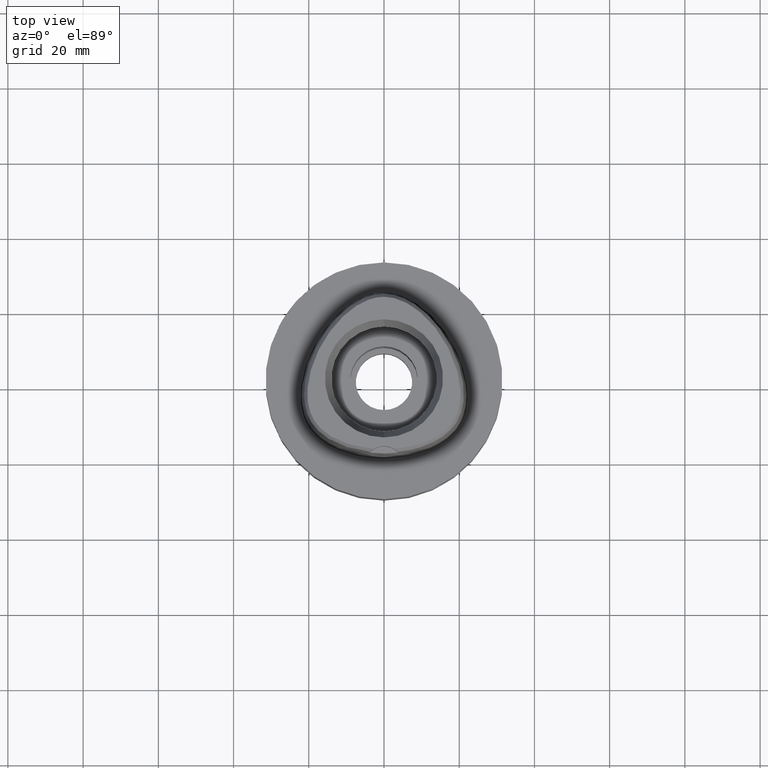
[diagram: clean part render]
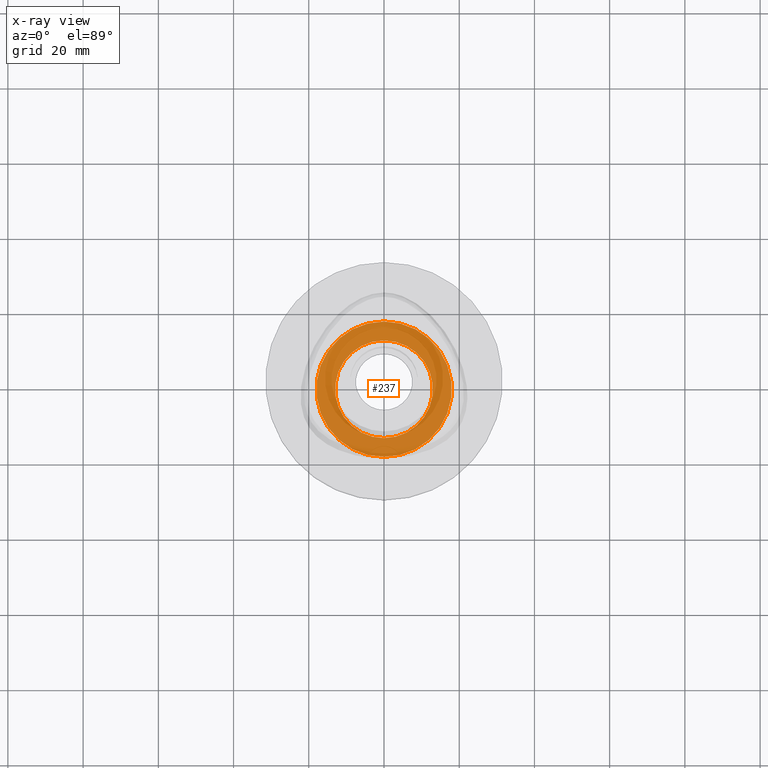
[diagram: x-ray — body ghosted, one internal face saturated and labeled with its STEP entity id]
A machine part, top view, then the same camera in x-ray: the body is ghosted and one INTERNAL B-rep face — a face not visible from any outside direction — is saturated and labeled: STEP entity #237.
In plain terms, the highlighted planar face has unit normal (0, 0, -1).
Its self-contained STEP definition (entity closure, byte-faithful):
#195 = ORIENTED_EDGE ( 'NONE', *, *, #4981, .F. ) ;
#237 = ADVANCED_FACE ( 'NONE', ( #4304, #2148 ), #529, .F. ) ;
#308 = AXIS2_PLACEMENT_3D ( 'NONE', #4675, #2521, #5508 ) ;
#383 = EDGE_LOOP ( 'NONE', ( #3117, #672 ) ) ;
#522 = CIRCLE ( 'NONE', #2387, 13.00000000000000000 ) ;
#529 = PLANE ( 'NONE',  #4546 ) ;
#672 = ORIENTED_EDGE ( 'NONE', *, *, #2717, .F. ) ;
#830 = CARTESIAN_POINT ( 'NONE',  ( 0.0000000000000000000, 13.00000000000000000, -10.80000000000000071 ) ) ;
#877 = CIRCLE ( 'NONE', #4989, 18.00000000000000000 ) ;
#902 = CARTESIAN_POINT ( 'NONE',  ( 0.0000000000000000000, 0.0000000000000000000, -10.80000000000000071 ) ) ;
#1137 = AXIS2_PLACEMENT_3D ( 'NONE', #1967, #4550, #4889 ) ;
#1298 = DIRECTION ( 'NONE',  ( 0.0000000000000000000, -1.000000000000000000, 0.0000000000000000000 ) ) ;
#1673 = CARTESIAN_POINT ( 'NONE',  ( 0.0000000000000000000, 0.0000000000000000000, -10.80000000000000071 ) ) ;
#1700 = DIRECTION ( 'NONE',  ( 0.0000000000000000000, 0.0000000000000000000, -1.000000000000000000 ) ) ;
#1810 = EDGE_CURVE ( 'NONE', #2425, #3544, #877, .T. ) ;
#1967 = CARTESIAN_POINT ( 'NONE',  ( 0.0000000000000000000, 0.0000000000000000000, -10.80000000000000071 ) ) ;
#2148 = FACE_BOUND ( 'NONE', #383, .T. ) ;
#2185 = CARTESIAN_POINT ( 'NONE',  ( 0.0000000000000000000, 0.0000000000000000000, -10.80000000000000071 ) ) ;
#2198 = VERTEX_POINT ( 'NONE', #830 ) ;
#2350 = EDGE_LOOP ( 'NONE', ( #3779, #195 ) ) ;
#2387 = AXIS2_PLACEMENT_3D ( 'NONE', #2185, #3515, #1298 ) ;
#2425 = VERTEX_POINT ( 'NONE', #2592 ) ;
#2521 = DIRECTION ( 'NONE',  ( 0.0000000000000000000, 0.0000000000000000000, 1.000000000000000000 ) ) ;
#2592 = CARTESIAN_POINT ( 'NONE',  ( 0.0000000000000000000, 18.00000000000000000, -10.80000000000000071 ) ) ;
#2717 = EDGE_CURVE ( 'NONE', #2756, #2198, #522, .T. ) ;
#2756 = VERTEX_POINT ( 'NONE', #3087 ) ;
#3064 = CARTESIAN_POINT ( 'NONE',  ( 0.0000000000000000000, -18.00000000000000000, -10.80000000000000071 ) ) ;
#3087 = CARTESIAN_POINT ( 'NONE',  ( 0.0000000000000000000, -13.00000000000000000, -10.80000000000000071 ) ) ;
#3117 = ORIENTED_EDGE ( 'NONE', *, *, #3959, .F. ) ;
#3515 = DIRECTION ( 'NONE',  ( 0.0000000000000000000, 0.0000000000000000000, 1.000000000000000000 ) ) ;
#3544 = VERTEX_POINT ( 'NONE', #3064 ) ;
#3779 = ORIENTED_EDGE ( 'NONE', *, *, #1810, .F. ) ;
#3872 = DIRECTION ( 'NONE',  ( 0.0000000000000000000, -1.000000000000000000, 0.0000000000000000000 ) ) ;
#3959 = EDGE_CURVE ( 'NONE', #2198, #2756, #5169, .T. ) ;
#4304 = FACE_OUTER_BOUND ( 'NONE', #2350, .T. ) ;
#4329 = DIRECTION ( 'NONE',  ( 0.0000000000000000000, 0.0000000000000000000, -1.000000000000000000 ) ) ;
#4546 = AXIS2_PLACEMENT_3D ( 'NONE', #902, #4329, #3872 ) ;
#4550 = DIRECTION ( 'NONE',  ( 0.0000000000000000000, 0.0000000000000000000, -1.000000000000000000 ) ) ;
#4675 = CARTESIAN_POINT ( 'NONE',  ( 0.0000000000000000000, 0.0000000000000000000, -10.80000000000000071 ) ) ;
#4889 = DIRECTION ( 'NONE',  ( 0.0000000000000000000, -1.000000000000000000, 0.0000000000000000000 ) ) ;
#4981 = EDGE_CURVE ( 'NONE', #3544, #2425, #5358, .T. ) ;
#4989 = AXIS2_PLACEMENT_3D ( 'NONE', #1673, #1700, #5475 ) ;
#5169 = CIRCLE ( 'NONE', #308, 13.00000000000000000 ) ;
#5358 = CIRCLE ( 'NONE', #1137, 18.00000000000000000 ) ;
#5475 = DIRECTION ( 'NONE',  ( 0.0000000000000000000, 1.000000000000000000, 0.0000000000000000000 ) ) ;
#5508 = DIRECTION ( 'NONE',  ( 0.0000000000000000000, 1.000000000000000000, 0.0000000000000000000 ) ) ;